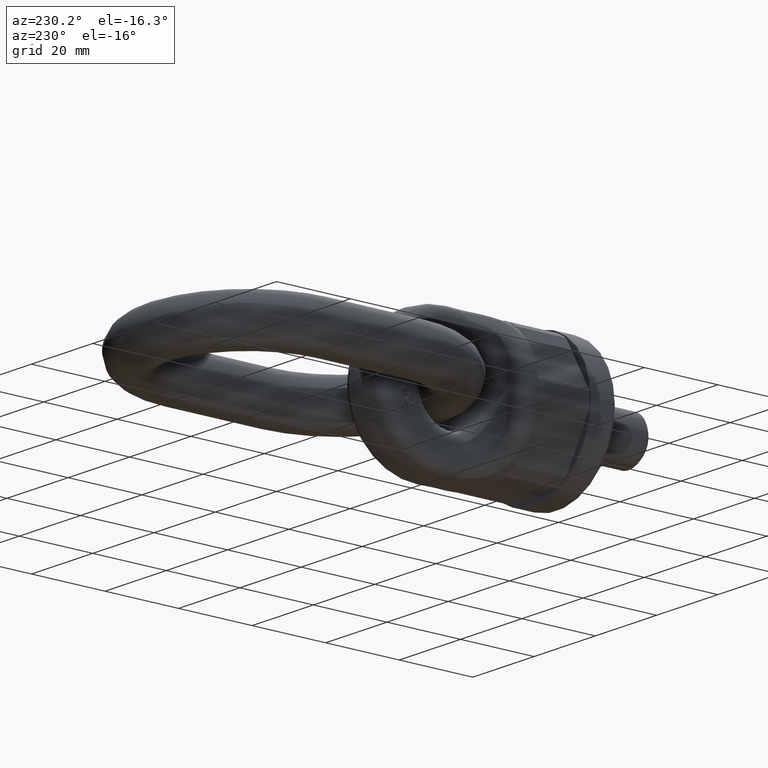
[diagram: clean part render]
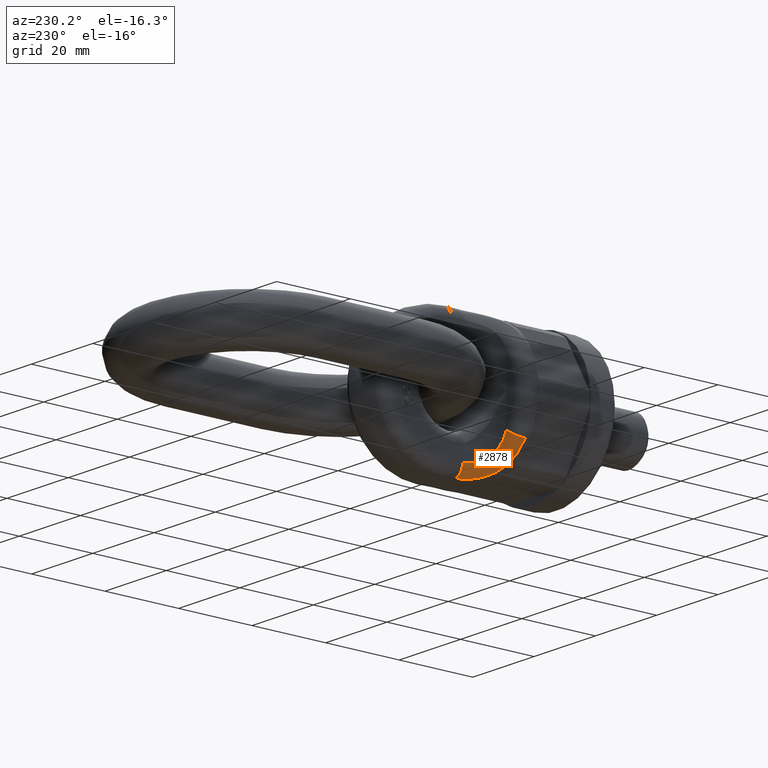
[diagram: same view with one face highlighted and labeled with its STEP entity id]
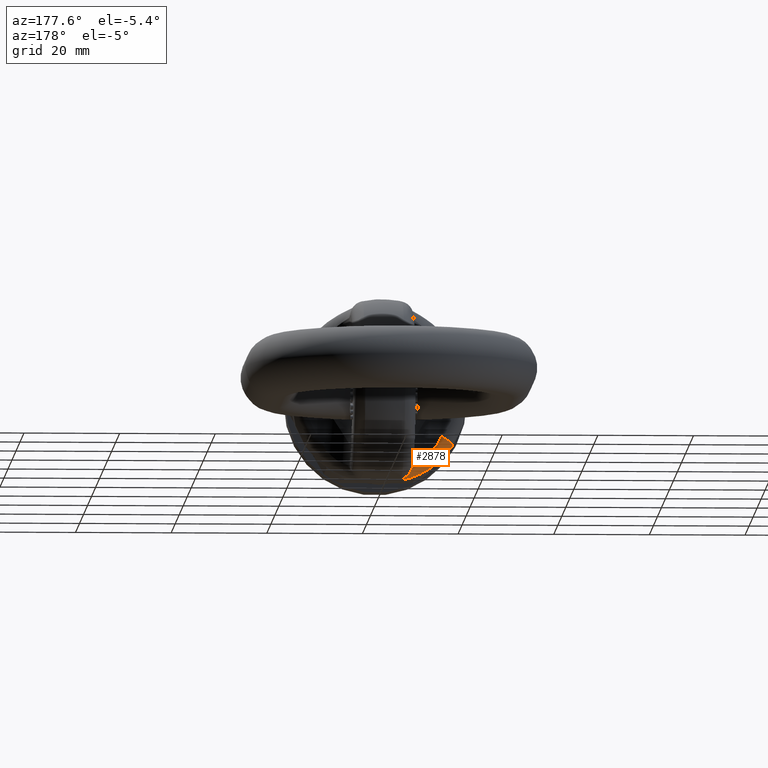
[diagram: same view with one face highlighted and labeled with its STEP entity id]
A machine part, auxiliary view. The second image highlights one B-rep face of the part: STEP entity #2878.
A second angle (auxiliary view) of the same face is appended — the face is thin or edge-on in the first view.
In plain terms, the highlighted face is a freeform B-spline surface patch.
Its self-contained STEP definition (entity closure, byte-faithful):
#219=(
BOUNDED_SURFACE()
B_SPLINE_SURFACE(3,2,((#9630,#9631,#9632),(#9633,#9634,#9635),(#9636,#9637,
#9638),(#9639,#9640,#9641),(#9642,#9643,#9644),(#9645,#9646,#9647),(#9648,
#9649,#9650),(#9651,#9652,#9653),(#9654,#9655,#9656),(#9657,#9658,#9659)),
 .UNSPECIFIED.,.F.,.F.,.F.)
B_SPLINE_SURFACE_WITH_KNOTS((4,2,2,2,4),(3,3),(0.,0.25,0.5,0.75,1.),(0.,
1.),.UNSPECIFIED.)
GEOMETRIC_REPRESENTATION_ITEM()
RATIONAL_B_SPLINE_SURFACE(((1.,0.780972408280259,1.),(1.,0.779643457907135,
1.),(1.,0.783614111680719,1.),(1.,0.792377672321376,1.),(1.,0.796791238178837,
1.),(1.,0.791586915144616,1.),(1.,0.7815024303481,1.),(1.,0.746971353020208,
1.),(1.,0.723235545011934,1.),(1.,0.698015727056309,1.)))
REPRESENTATION_ITEM('')
SURFACE()
);
#364=B_SPLINE_CURVE_WITH_KNOTS('',3,(#7084,#7085,#7086,#7087,#7088,#7089,
#7090,#7091,#7092,#7093),.UNSPECIFIED.,.F.,.F.,(4,2,2,2,4),(0.,0.25,0.5,
0.75,1.),.UNSPECIFIED.);
#543=B_SPLINE_CURVE_WITH_KNOTS('',3,(#8579,#8580,#8581,#8582,#8583,#8584,
#8585,#8586),.UNSPECIFIED.,.F.,.F.,(4,2,2,4),(0.,0.25,0.5,1.),
 .UNSPECIFIED.);
#2014=FACE_OUTER_BOUND('',#3337,.T.);
#2878=ADVANCED_FACE('',(#2014),#219,.T.);
#3337=EDGE_LOOP('',(#4513,#4514,#4515,#4516));
#4513=ORIENTED_EDGE('',*,*,#5527,.T.);
#4514=ORIENTED_EDGE('',*,*,#5347,.F.);
#4515=ORIENTED_EDGE('',*,*,#5529,.F.);
#4516=ORIENTED_EDGE('',*,*,#5078,.F.);
#4654=VERTEX_POINT('',#7026);
#4665=VERTEX_POINT('',#7083);
#4789=VERTEX_POINT('',#8379);
#4841=VERTEX_POINT('',#8570);
#5078=EDGE_CURVE('',#4665,#4654,#364,.T.);
#5347=EDGE_CURVE('',#4789,#4841,#543,.T.);
#5527=EDGE_CURVE('',#4665,#4841,#5593,.T.);
#5529=EDGE_CURVE('',#4654,#4789,#5595,.T.);
#5593=CIRCLE('',#5792,3.);
#5595=CIRCLE('',#5795,3.);
#5792=AXIS2_PLACEMENT_3D('',#9614,#6535,#6536);
#5795=AXIS2_PLACEMENT_3D('',#9629,#6541,#6542);
#6535=DIRECTION('',(0.558577371624387,3.22992426568747E-16,-0.829452421727245));
#6536=DIRECTION('',(-0.829452421727245,0.,-0.558577371624387));
#6541=DIRECTION('',(4.62144864194266E-17,0.999657015924003,-0.026188747849362));
#6542=DIRECTION('',(2.31296463463574E-15,-0.0261887478493622,-0.999657015924004));
#7026=CARTESIAN_POINT('',(-4.15950741497036,31.4233557313077,-18.4517766458426));
#7083=CARTESIAN_POINT('',(-15.4875450511605,21.9233557313077,-10.4297630352043));
#7084=CARTESIAN_POINT('',(-15.4875450511605,21.9233557313077,-10.4297630352043));
#7085=CARTESIAN_POINT('',(-14.5962132237875,21.9233557313077,-11.7533349884095));
#7086=CARTESIAN_POINT('',(-13.5372725100627,22.0103603320934,-12.9578858057789));
#7087=CARTESIAN_POINT('',(-11.2071744067671,22.5697432777094,-15.0365529692814));
#7088=CARTESIAN_POINT('',(-9.93000354387097,23.047073763236,-15.9078233343834));
#7089=CARTESIAN_POINT('',(-7.47786478382281,24.5853210556568,-17.2399892013454));
#7090=CARTESIAN_POINT('',(-6.32296779776603,25.6483066229491,-17.6918205052819));
#7091=CARTESIAN_POINT('',(-4.66149671593479,28.2629306005112,-18.2691930515016));
#7092=CARTESIAN_POINT('',(-4.16120719675783,29.8182593468178,-18.4093435841613));
#7093=CARTESIAN_POINT('',(-4.15950741497034,31.4233557313077,-18.4517766458427));
#8379=CARTESIAN_POINT('',(-6.49999999999996,31.5,-15.5261697642409));
#8570=CARTESIAN_POINT('',(-13.,25.,-8.75457788886277));
#8579=CARTESIAN_POINT('',(-6.49999999999996,31.5,-15.5261697642409));
#8580=CARTESIAN_POINT('',(-6.49999999999996,30.4023984418045,-15.484143703934));
#8581=CARTESIAN_POINT('',(-6.78545360090911,29.3252350292592,-15.3619240039014));
#8582=CARTESIAN_POINT('',(-7.7849597312283,27.4808527497112,-14.8402538309279));
#8583=CARTESIAN_POINT('',(-8.49812095313619,26.7237377680075,-14.4221665651141));
#8584=CARTESIAN_POINT('',(-10.7273783797691,25.1436193933453,-12.5839638700305));
#8585=CARTESIAN_POINT('',(-12.0856010531234,25.,-10.7390916154192));
#8586=CARTESIAN_POINT('',(-13.,25.,-8.75457788886277));
#9614=CARTESIAN_POINT('',(-13.,22.,-8.75457788886277));
#9629=CARTESIAN_POINT('',(-3.49999999999996,31.5,-15.5261697642409));
#9630=CARTESIAN_POINT('',(-4.15950741497036,31.4233557313077,-18.4517766458426));
#9631=CARTESIAN_POINT('',(-6.49999999999996,31.4371683726787,-17.9245309778023));
#9632=CARTESIAN_POINT('',(-6.49999999999996,31.5,-15.5261697642409));
#9633=CARTESIAN_POINT('',(-4.16101149813839,30.003059788824,-18.4142290523737));
#9634=CARTESIAN_POINT('',(-6.50939129660193,30.3846478583226,-17.8935762276463));
#9635=CARTESIAN_POINT('',(-6.49999999999996,30.5281796664903,-15.4889597400041));
#9636=CARTESIAN_POINT('',(-4.55607279433063,28.568193265007,-18.2987280874284));
#9637=CARTESIAN_POINT('',(-6.77524229738866,29.3254455807864,-17.758705141524));
#9638=CARTESIAN_POINT('',(-6.72653651897812,29.5464677859453,-15.3860929892067));
#9639=CARTESIAN_POINT('',(-6.00820037353757,26.0382686638657,-17.8064732262589));
#9640=CARTESIAN_POINT('',(-7.80860151802448,27.4168518434912,-17.2282406471887));
#9641=CARTESIAN_POINT('',(-7.55970158524907,27.8154667435992,-14.9624301119395));
#9642=CARTESIAN_POINT('',(-7.07777447201321,24.9242747897333,-17.4153564450711));
#9643=CARTESIAN_POINT('',(-8.59531565111607,26.5534432716013,-16.8220174161641));
#9644=CARTESIAN_POINT('',(-8.17347428744997,27.0532604077722,-14.6295051826449));
#9645=CARTESIAN_POINT('',(-9.51439883111518,23.2446510618867,-16.1634775256276));
#9646=CARTESIAN_POINT('',(-10.4725177193561,25.3175549245591,-15.6383367571687));
#9647=CARTESIAN_POINT('',(-9.5715715188377,25.9040441741783,-13.5719420212321));
#9648=CARTESIAN_POINT('',(-10.8740128637119,22.6779018706354,-15.2926682976024));
#9649=CARTESIAN_POINT('',(-11.5827978292426,24.9424435031611,-14.8298754704256));
#9650=CARTESIAN_POINT('',(-10.351671794447,25.5162684091243,-12.8388804208913));
#9651=CARTESIAN_POINT('',(-13.383730426558,22.024010054005,-13.1286401737659));
#9652=CARTESIAN_POINT('',(-13.6857249784127,24.6809014149145,-12.8910298666032));
#9653=CARTESIAN_POINT('',(-11.7920112294759,25.0688687491034,-11.0201858156605));
#9654=CARTESIAN_POINT('',(-14.5297638350145,21.923355727081,-11.8520081698378));
#9655=CARTESIAN_POINT('',(-14.6986780971373,24.7915410994838,-11.7324083315576));
#9656=CARTESIAN_POINT('',(-12.4498017270078,25.,-9.94866940436174));
#9657=CARTESIAN_POINT('',(-15.4875450511605,21.9233557313077,-10.4297630352043));
#9658=CARTESIAN_POINT('',(-15.552763275971,25.,-10.4736828835794));
#9659=CARTESIAN_POINT('',(-13.,25.,-8.75457788886277));